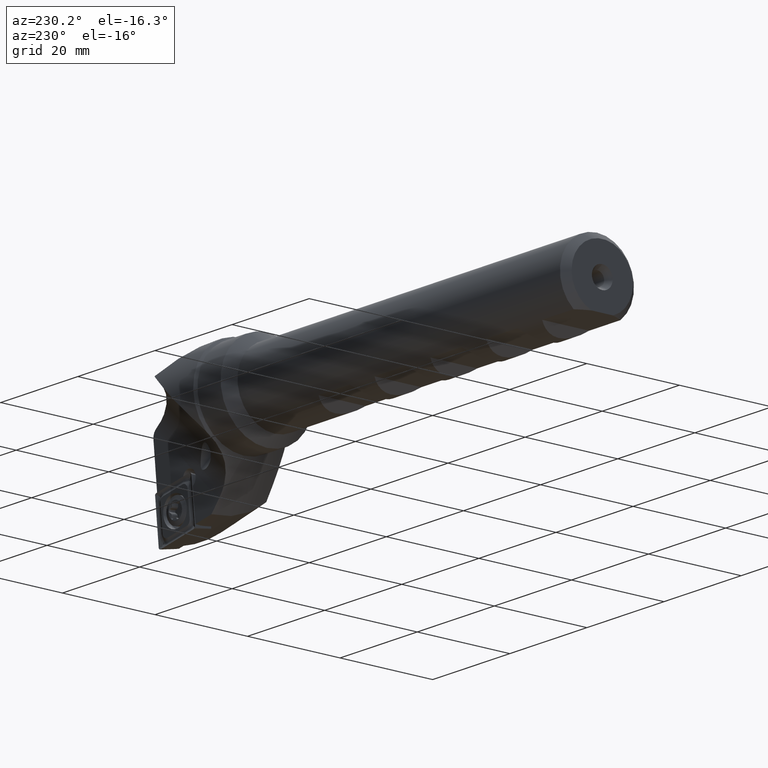
[diagram: clean part render]
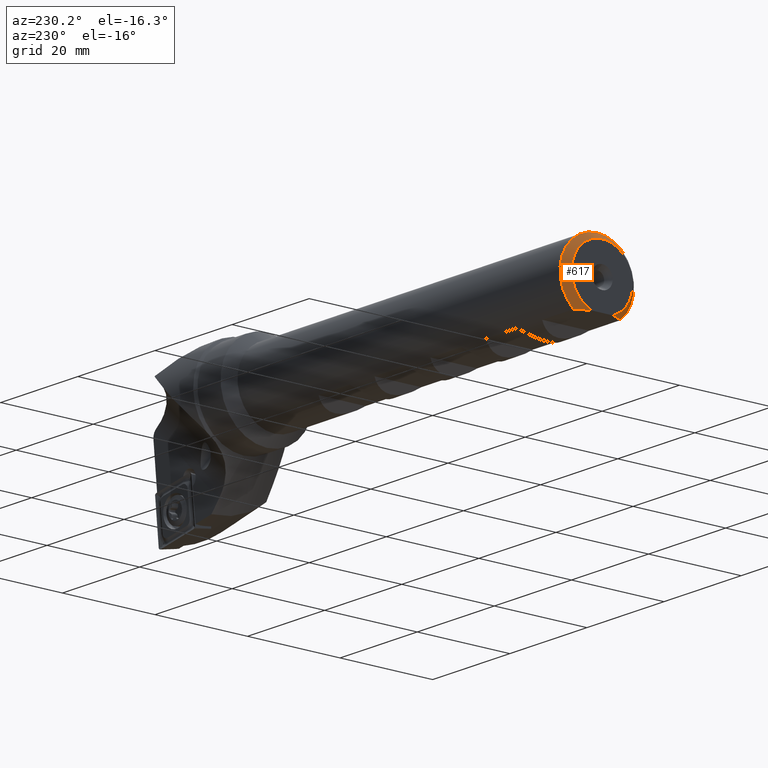
[diagram: same view with one face highlighted and labeled with its STEP entity id]
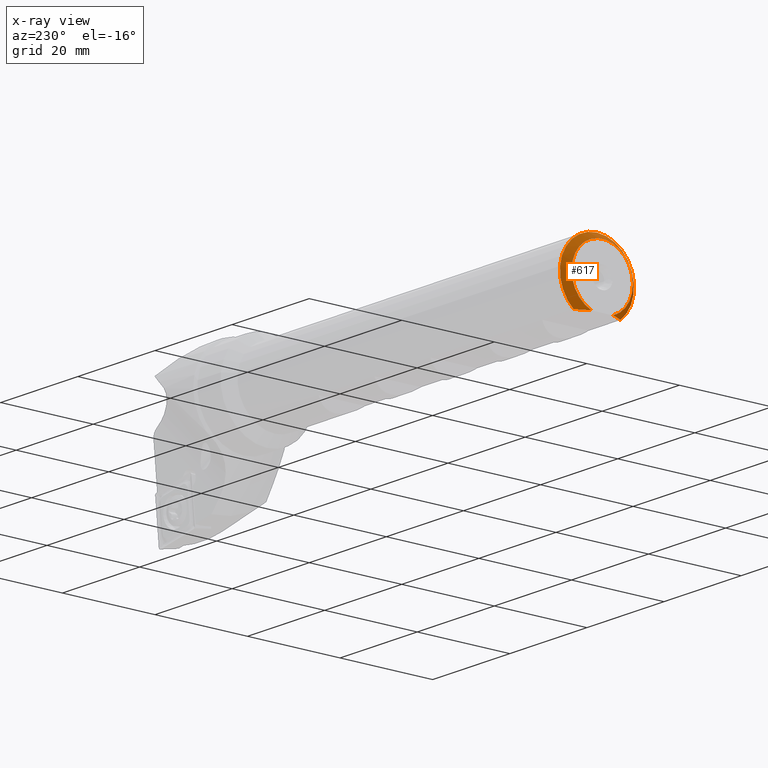
[diagram: x-ray of the same camera — body ghosted, the highlighted face saturated]
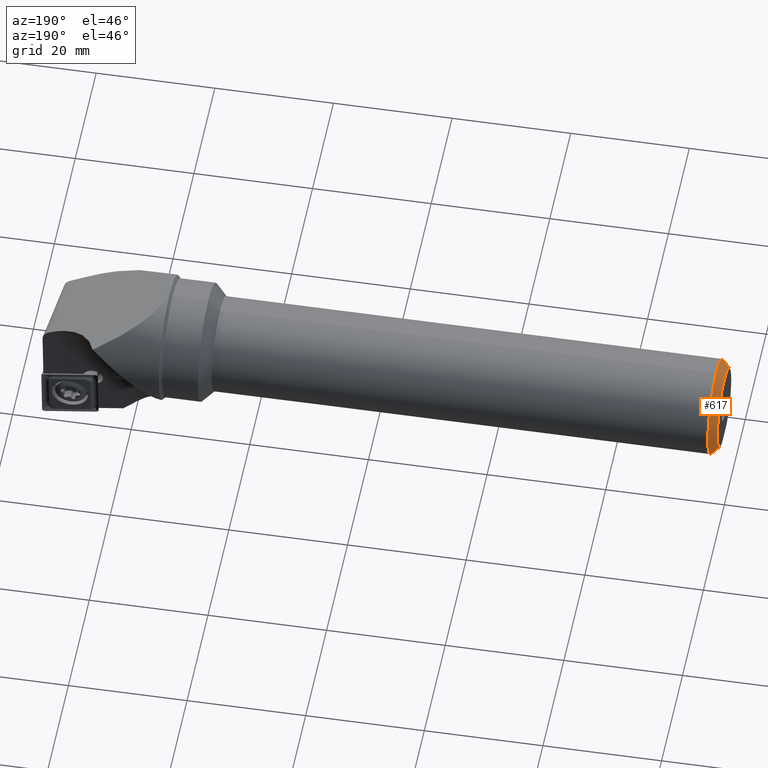
[diagram: same view with one face highlighted and labeled with its STEP entity id]
A machine part, auxiliary view. The second image highlights one B-rep face of the part: STEP entity #617.
The next image is the same camera in x-ray: the body ghosted, the highlighted face saturated — about 0% of this face is hidden behind the body in this view.
A second angle (auxiliary view) of the same face is appended — the face is thin or edge-on in the first view.
In plain terms, the highlighted conical surface has half-angle 45 deg.
Its self-contained STEP definition (entity closure, byte-faithful):
#52 = VERTEX_POINT ( 'NONE', #2042 ) ;
#238 = CARTESIAN_POINT ( 'NONE',  ( 0.0000000000000000000, -2.334657362441029200, -6.199999999999997500 ) ) ;
#240 = CONICAL_SURFACE ( 'NONE', #356, 8.000000000000000000, 0.7853981633974466100 ) ;
#356 = AXIS2_PLACEMENT_3D ( 'NONE', #724, #1866, #3703 ) ;
#406 = DIRECTION ( 'NONE',  ( -1.000000000000000000, -0.0000000000000000000, -0.0000000000000000000 ) ) ;
#483 = CARTESIAN_POINT ( 'NONE',  ( 2.357445088358658200E-016, 2.334657362441029200, -6.199999999999997500 ) ) ;
#570 = EDGE_LOOP ( 'NONE', ( #2811, #2671, #1897, #1573 ) ) ;
#604 = EDGE_CURVE ( 'NONE', #1432, #52, #1937, .T. ) ;
#617 = ADVANCED_FACE ( 'NONE', ( #1436 ), #240, .T. ) ;
#659 = DIRECTION ( 'NONE',  ( -1.000000000000000000, -0.0000000000000000000, -0.0000000000000000000 ) ) ;
#724 = CARTESIAN_POINT ( 'NONE',  ( 1.374999999999999600, 0.0000000000000000000, 0.0000000000000000000 ) ) ;
#832 = CARTESIAN_POINT ( 'NONE',  ( 1.103883033249896800, -4.626681006086922600, -6.199999999999997500 ) ) ;
#1027 = VERTEX_POINT ( 'NONE', #2574 ) ;
#1117 = CARTESIAN_POINT ( 'NONE',  ( 0.8475333585746148700, -4.189047391212122700, -6.199999999999994800 ) ) ;
#1329 = CIRCLE ( 'NONE', #2117, 8.000000000000000000 ) ;
#1335 = CARTESIAN_POINT ( 'NONE',  ( 1.375000000000003600, 5.055689863905846500, -6.199999999999997500 ) ) ;
#1367 = CARTESIAN_POINT ( 'NONE',  ( 1.375000000000003600, 5.055689863905846500, -6.199999999999997500 ) ) ;
#1381 = CARTESIAN_POINT ( 'NONE',  ( 0.3783296866794279600, 3.279715641321741000, -6.199999999999994800 ) ) ;
#1409 = CARTESIAN_POINT ( 'NONE',  ( 0.0000000000000000000, -2.334657362441029200, -6.199999999999997500 ) ) ;
#1432 = VERTEX_POINT ( 'NONE', #238 ) ;
#1436 = FACE_OUTER_BOUND ( 'NONE', #570, .T. ) ;
#1529 = DIRECTION ( 'NONE',  ( 0.0000000000000000000, 0.0000000000000000000, 1.000000000000000000 ) ) ;
#1573 = ORIENTED_EDGE ( 'NONE', *, *, #3775, .T. ) ;
#1665 = CARTESIAN_POINT ( 'NONE',  ( 0.8443957044948026100, 4.183512899218848200, -6.199999999999997500 ) ) ;
#1713 = CARTESIAN_POINT ( 'NONE',  ( 1.374999999999999600, -5.055689863905819000, -6.199999999999997500 ) ) ;
#1842 = CARTESIAN_POINT ( 'NONE',  ( 0.0000000000000000000, 0.0000000000000000000, 0.0000000000000000000 ) ) ;
#1866 = DIRECTION ( 'NONE',  ( 1.000000000000000000, 0.0000000000000000000, 0.0000000000000000000 ) ) ;
#1897 = ORIENTED_EDGE ( 'NONE', *, *, #604, .F. ) ;
#1937 = CIRCLE ( 'NONE', #3420, 6.625000000000005300 ) ;
#1985 = CARTESIAN_POINT ( 'NONE',  ( 0.1714315222812201900, -2.821124393271455600, -6.199999999999995700 ) ) ;
#2042 = CARTESIAN_POINT ( 'NONE',  ( 2.357445088358658200E-016, 2.334657362441029200, -6.199999999999997500 ) ) ;
#2117 = AXIS2_PLACEMENT_3D ( 'NONE', #2686, #659, #1529 ) ;
#2368 = EDGE_CURVE ( 'NONE', #1027, #3062, #1329, .T. ) ;
#2574 = CARTESIAN_POINT ( 'NONE',  ( 1.374999999999999600, -5.055689863905819000, -6.199999999999997500 ) ) ;
#2671 = ORIENTED_EDGE ( 'NONE', *, *, #3614, .T. ) ;
#2686 = CARTESIAN_POINT ( 'NONE',  ( 1.374999999999999600, 0.0000000000000000000, 0.0000000000000000000 ) ) ;
#2806 = B_SPLINE_CURVE_WITH_KNOTS ( 'NONE', 3,
 ( #1367, #2868, #1665, #1381, #3469, #483 ),
 .UNSPECIFIED., .F., .F.,
 ( 4, 2, 4 ),
 ( 0.01498964033621598400, 0.01651543360208723000, 0.01804122686795847600 ),
 .UNSPECIFIED. ) ;
#2811 = ORIENTED_EDGE ( 'NONE', *, *, #2368, .T. ) ;
#2868 = CARTESIAN_POINT ( 'NONE',  ( 1.102759812682804700, 4.624903649330747200, -6.199999999999998400 ) ) ;
#2882 = CARTESIAN_POINT ( 'NONE',  ( 0.3815471660728574400, -3.286497594889467200, -6.199999999999998400 ) ) ;
#3062 = VERTEX_POINT ( 'NONE', #1335 ) ;
#3334 = DIRECTION ( 'NONE',  ( 0.0000000000000000000, 0.0000000000000000000, 1.000000000000000000 ) ) ;
#3420 = AXIS2_PLACEMENT_3D ( 'NONE', #1842, #406, #3334 ) ;
#3423 = B_SPLINE_CURVE_WITH_KNOTS ( 'NONE', 3,
 ( #1409, #1985, #2882, #1117, #832, #1713 ),
 .UNSPECIFIED., .F., .F.,
 ( 4, 2, 4 ),
 ( 0.02280706587486892200, 0.02434375454163164800, 0.02588044320839437400 ),
 .UNSPECIFIED. ) ;
#3469 = CARTESIAN_POINT ( 'NONE',  ( 0.1697391835517379500, 2.816322085119873800, -6.199999999999999300 ) ) ;
#3614 = EDGE_CURVE ( 'NONE', #3062, #52, #2806, .T. ) ;
#3703 = DIRECTION ( 'NONE',  ( 0.0000000000000000000, 0.0000000000000000000, -1.000000000000000000 ) ) ;
#3775 = EDGE_CURVE ( 'NONE', #1432, #1027, #3423, .T. ) ;